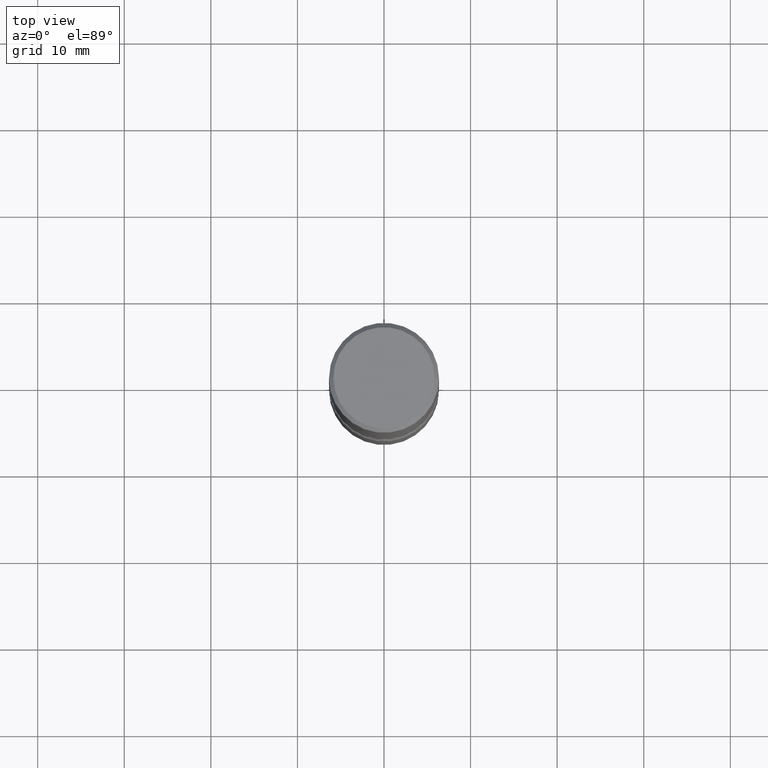
[diagram: clean part render]
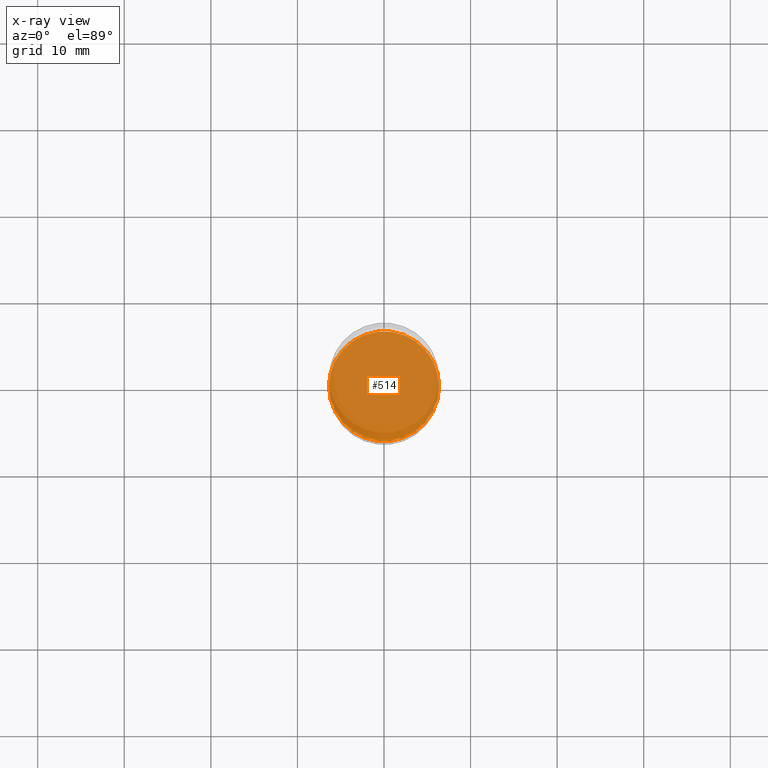
[diagram: x-ray — body ghosted, one internal face saturated and labeled with its STEP entity id]
A machine part, top view, then the same camera in x-ray: the body is ghosted and one INTERNAL B-rep face — a face not visible from any outside direction — is saturated and labeled: STEP entity #514.
In plain terms, the highlighted planar face has unit normal (0, -0, -1).
Its self-contained STEP definition (entity closure, byte-faithful):
#56 = VERTEX_POINT ( 'NONE', #496 ) ;
#61 = ORIENTED_EDGE ( 'NONE', *, *, #557, .T. ) ;
#73 = CARTESIAN_POINT ( 'NONE',  ( 3.785429481638292293E-29, -1.031449620669491633E-14, -2.250000000000000888 ) ) ;
#96 = CIRCLE ( 'NONE', #519, 0.2500000000000003886 ) ;
#110 = EDGE_CURVE ( 'NONE', #56, #115, #359, .T. ) ;
#115 = VERTEX_POINT ( 'NONE', #328 ) ;
#116 = FACE_OUTER_BOUND ( 'NONE', #152, .T. ) ;
#152 = EDGE_LOOP ( 'NONE', ( #61, #324 ) ) ;
#161 = AXIS2_PLACEMENT_3D ( 'NONE', #416, #378, #184 ) ;
#184 = DIRECTION ( 'NONE',  ( 1.000000000000000000, -6.982962677686263555E-15, 0.000000000000000000 ) ) ;
#240 = DIRECTION ( 'NONE',  ( 2.438088387897960049E-29, -3.491481338843145188E-15, -1.000000000000000000 ) ) ;
#295 = DIRECTION ( 'NONE',  ( -2.445468806185136597E-29, 3.491481338843145583E-15, 1.000000000000000000 ) ) ;
#324 = ORIENTED_EDGE ( 'NONE', *, *, #110, .T. ) ;
#328 = CARTESIAN_POINT ( 'NONE',  ( 0.2500000000000003886, -9.601573681818649859E-15, -2.250000000000001332 ) ) ;
#331 = DIRECTION ( 'NONE',  ( -1.000000000000000000, 6.982962677686265922E-15, -4.876176775795935793E-29 ) ) ;
#343 = CARTESIAN_POINT ( 'NONE',  ( 5.502304813916559585E-29, -7.855833012397081604E-15, -2.250000000000001332 ) ) ;
#359 = CIRCLE ( 'NONE', #161, 0.2500000000000003886 ) ;
#378 = DIRECTION ( 'NONE',  ( -2.445468806185136597E-29, 3.491481338843145583E-15, 1.000000000000000000 ) ) ;
#384 = DIRECTION ( 'NONE',  ( 1.000000000000000000, -6.982962677686263555E-15, 0.000000000000000000 ) ) ;
#416 = CARTESIAN_POINT ( 'NONE',  ( 5.502304813916559585E-29, -7.855833012397081604E-15, -2.250000000000001332 ) ) ;
#445 = PLANE ( 'NONE',  #534 ) ;
#496 = CARTESIAN_POINT ( 'NONE',  ( -0.2500000000000003886, -7.720472402253104447E-15, -2.250000000000001332 ) ) ;
#514 = ADVANCED_FACE ( 'NONE', ( #116 ), #445, .F. ) ;
#519 = AXIS2_PLACEMENT_3D ( 'NONE', #343, #295, #384 ) ;
#534 = AXIS2_PLACEMENT_3D ( 'NONE', #73, #240, #331 ) ;
#557 = EDGE_CURVE ( 'NONE', #115, #56, #96, .T. ) ;